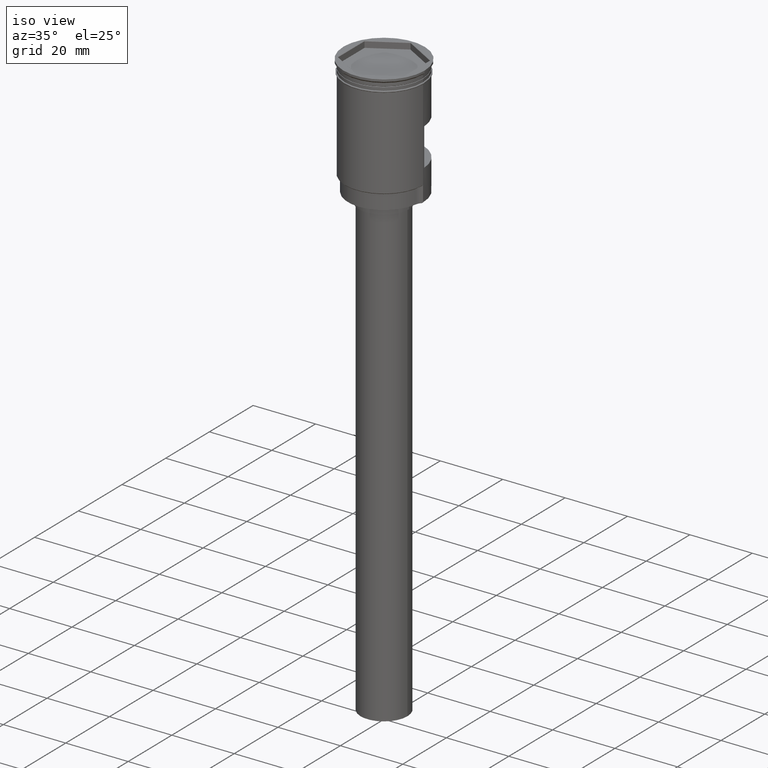
[diagram: clean part render]
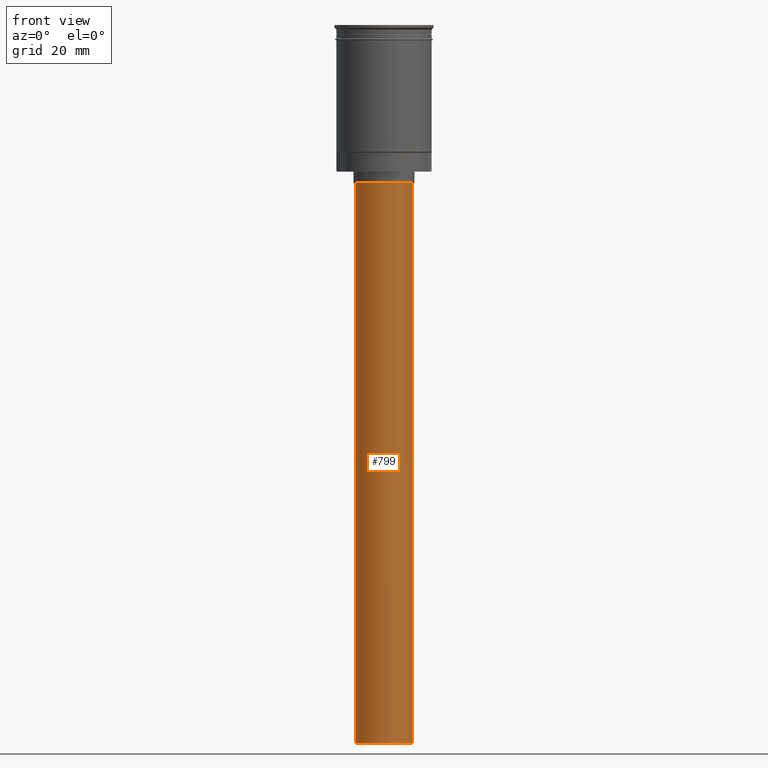
[diagram: tour spotlight — one face highlighted and labeled with its STEP entity id]
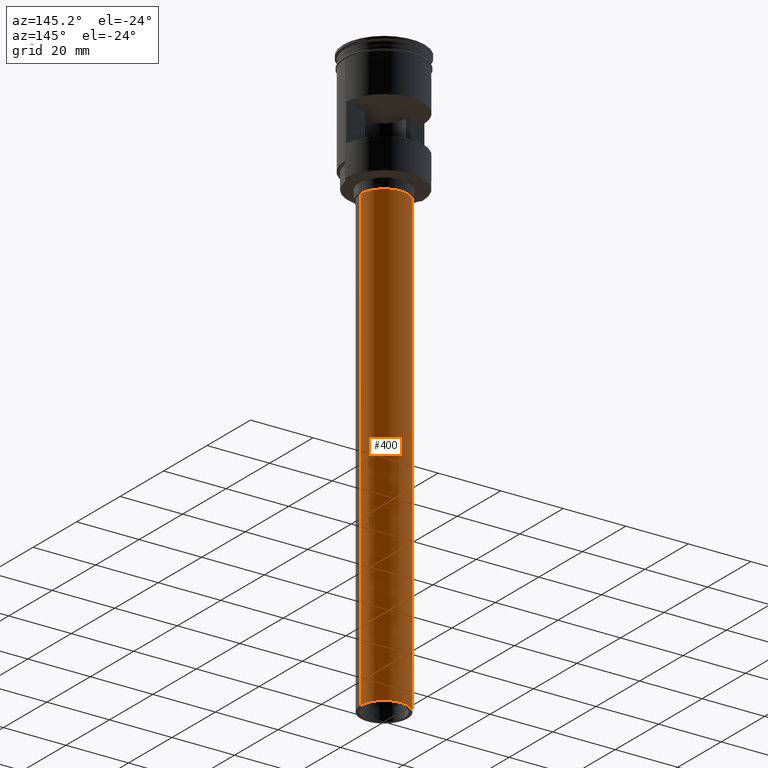
[diagram: tour spotlight — one face highlighted and labeled with its STEP entity id]
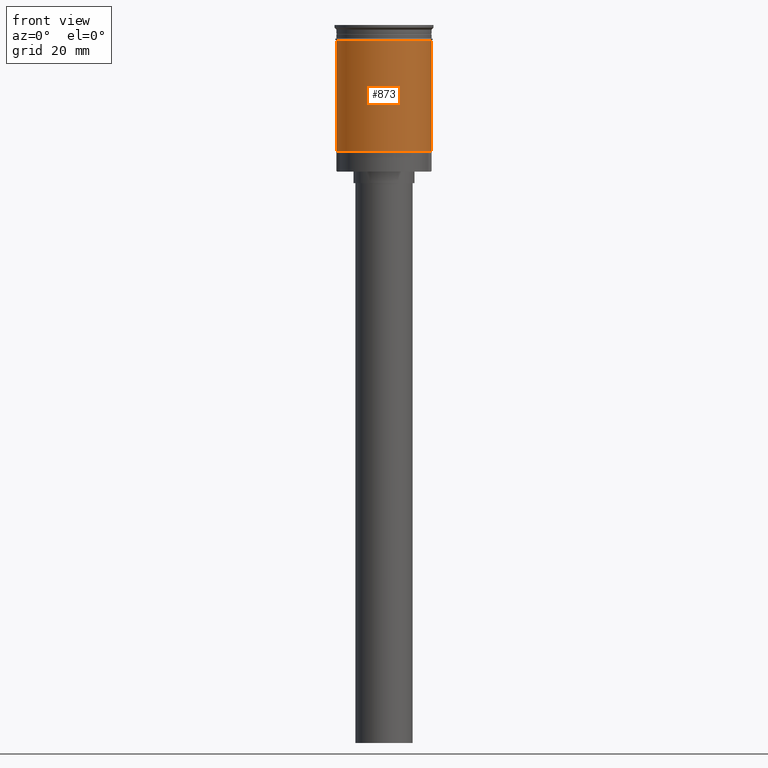
[diagram: tour spotlight — one face highlighted and labeled with its STEP entity id]
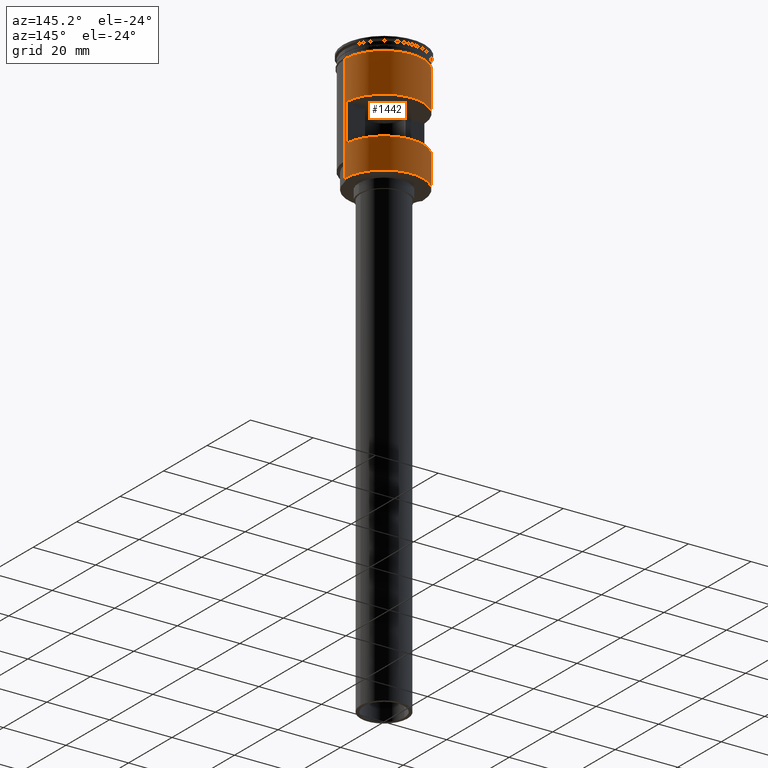
[diagram: tour spotlight — one face highlighted and labeled with its STEP entity id]
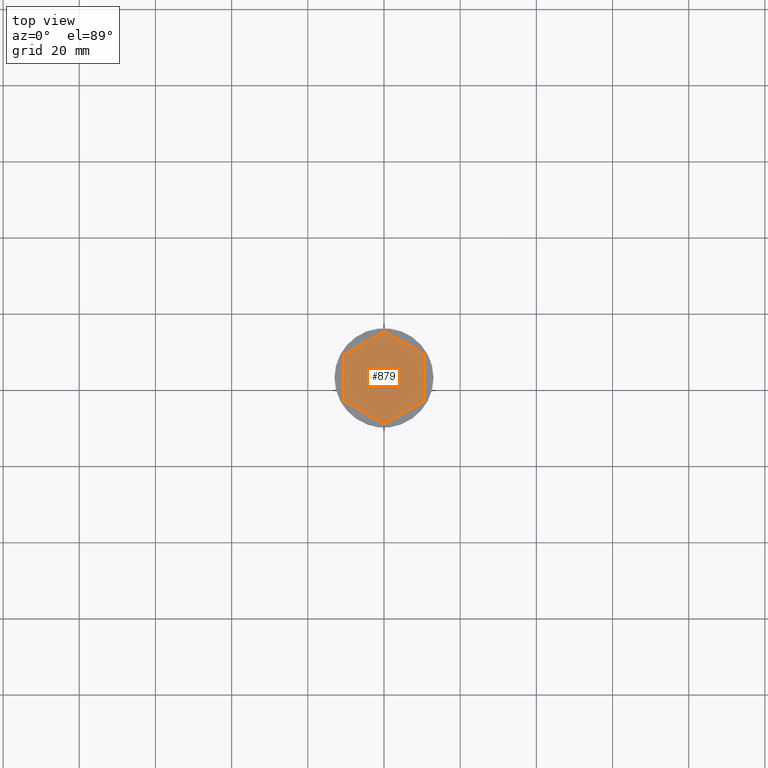
[diagram: tour spotlight — one face highlighted and labeled with its STEP entity id]
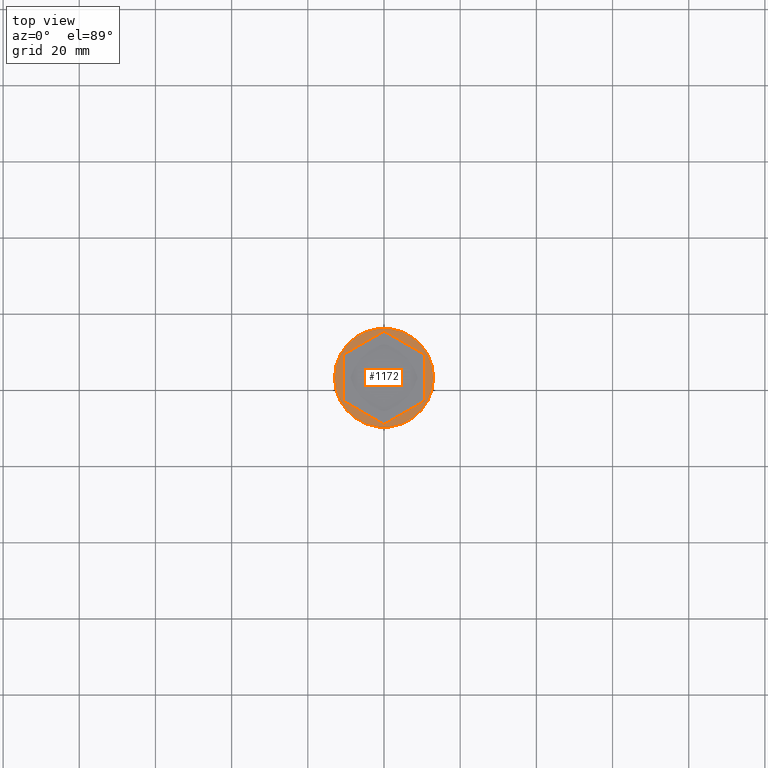
[diagram: tour spotlight — one face highlighted and labeled with its STEP entity id]
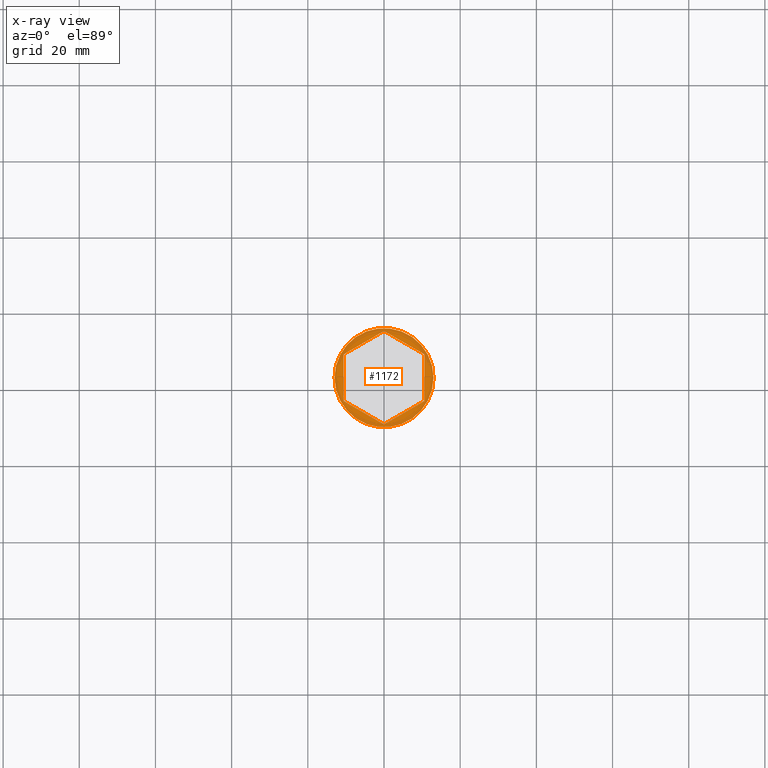
[diagram: x-ray of the same camera — body ghosted, this tour face saturated]
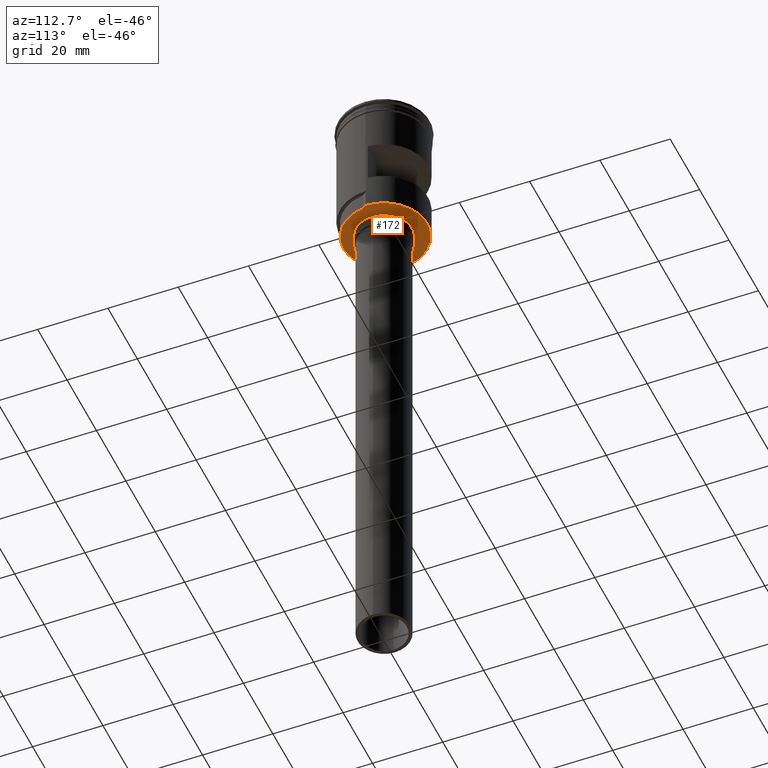
[diagram: tour spotlight — one face highlighted and labeled with its STEP entity id]
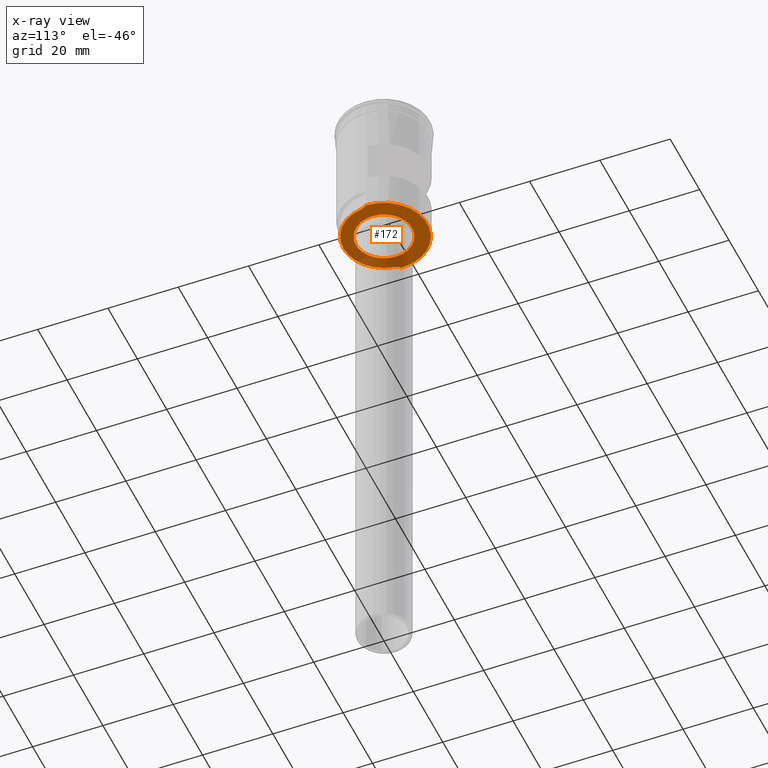
[diagram: x-ray of the same camera — body ghosted, this tour face saturated]
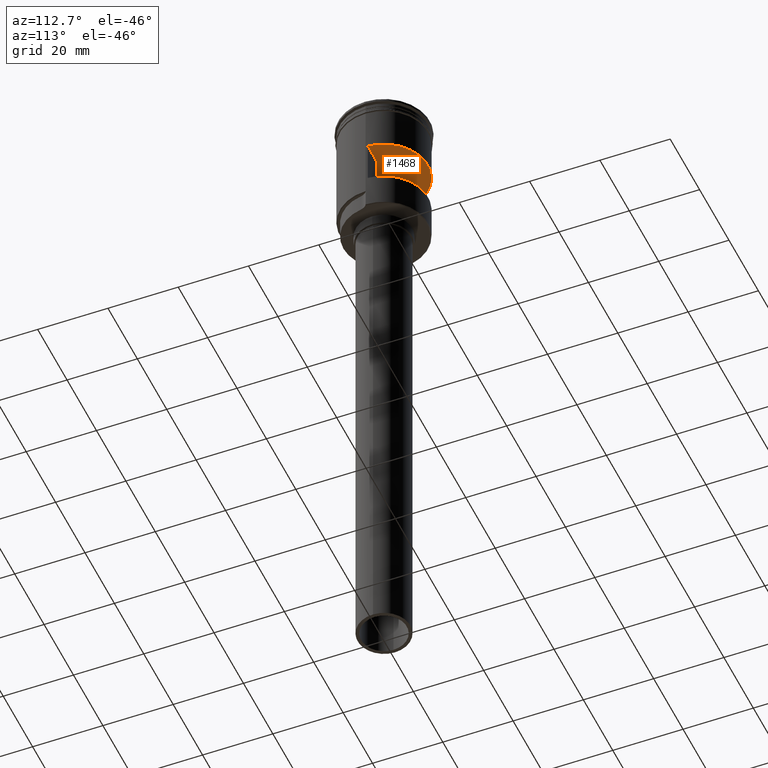
[diagram: tour spotlight — one face highlighted and labeled with its STEP entity id]
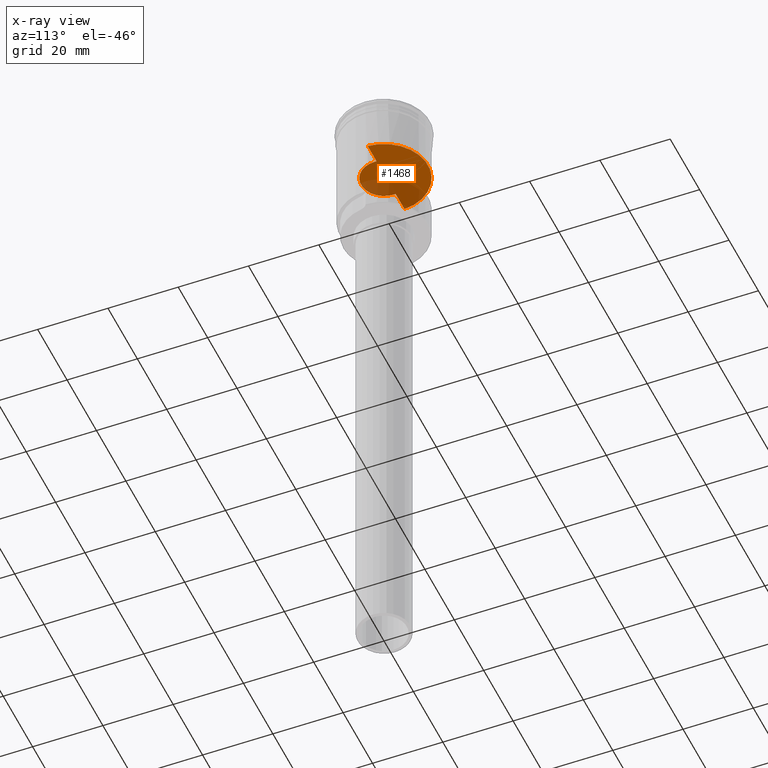
[diagram: x-ray of the same camera — body ghosted, this tour face saturated]
A machine part: a face-by-face anatomy tour. The part has 55 B-rep faces; the first image is the clean iso view, then the 8 largest visible faces are spotlighted one at a time (largest first), each with its STEP entity span.

Face 1 — front view, entity #799. In plain terms, the highlighted cylindrical surface (edge-blend (fillet) strip) has radius 7.5 mm, axis along (-0, -0, 1).
Definition (entity closure, byte-faithful):
#57 = LINE ( 'NONE', #820, #714 ) ;
#83 = DIRECTION ( 'NONE',  ( -1.000000000000000000, 0.000000000000000000, 0.000000000000000000 ) ) ;
#96 = CIRCLE ( 'NONE', #309, 7.500000000000000000 ) ;
#104 = EDGE_CURVE ( 'NONE', #570, #711, #465, .T. ) ;
#122 = CARTESIAN_POINT ( 'NONE',  ( 0.000000000000000000, 0.000000000000000000, -188.5000000000000000 ) ) ;
#154 = LINE ( 'NONE', #1223, #737 ) ;
#307 = AXIS2_PLACEMENT_3D ( 'NONE', #954, #362, #843 ) ;
#309 = AXIS2_PLACEMENT_3D ( 'NONE', #122, #1467, #83 ) ;
#362 = DIRECTION ( 'NONE',  ( -0.000000000000000000, -0.000000000000000000, 1.000000000000000000 ) ) ;
#455 = DIRECTION ( 'NONE',  ( -0.000000000000000000, -0.000000000000000000, 1.000000000000000000 ) ) ;
#456 = VERTEX_POINT ( 'NONE', #1142 ) ;
#465 = CIRCLE ( 'NONE', #1529, 7.500000000000000000 ) ;
#488 = CYLINDRICAL_SURFACE ( 'NONE', #307, 7.500000000000000000 ) ;
#495 = CARTESIAN_POINT ( 'NONE',  ( -7.500000000000000000, 9.184850993605147944E-16, -41.50000000000000000 ) ) ;
#547 = ORIENTED_EDGE ( 'NONE', *, *, #1241, .F. ) ;
#556 = EDGE_LOOP ( 'NONE', ( #976, #547, #768, #1019 ) ) ;
#570 = VERTEX_POINT ( 'NONE', #1550 ) ;
#579 = CARTESIAN_POINT ( 'NONE',  ( 0.000000000000000000, 0.000000000000000000, -41.50000000000000000 ) ) ;
#584 = EDGE_CURVE ( 'NONE', #1591, #711, #57, .T. ) ;
#613 = CARTESIAN_POINT ( 'NONE',  ( -7.500000000000000000, 9.184850993605147944E-16, -188.5000000000000000 ) ) ;
#711 = VERTEX_POINT ( 'NONE', #495 ) ;
#714 = VECTOR ( 'NONE', #455, 1000.000000000000000 ) ;
#737 = VECTOR ( 'NONE', #766, 1000.000000000000000 ) ;
#766 = DIRECTION ( 'NONE',  ( -0.000000000000000000, -0.000000000000000000, 1.000000000000000000 ) ) ;
#768 = ORIENTED_EDGE ( 'NONE', *, *, #1293, .T. ) ;
#799 = ADVANCED_FACE ( 'NONE', ( #1562 ), #488, .T. ) ;
#820 = CARTESIAN_POINT ( 'NONE',  ( -7.500000000000000000, 9.184850993605147944E-16, -188.5000000000000000 ) ) ;
#843 = DIRECTION ( 'NONE',  ( 1.000000000000000000, 0.000000000000000000, 0.000000000000000000 ) ) ;
#908 = DIRECTION ( 'NONE',  ( -1.000000000000000000, 0.000000000000000000, 0.000000000000000000 ) ) ;
#954 = CARTESIAN_POINT ( 'NONE',  ( 0.000000000000000000, 0.000000000000000000, -188.5000000000000000 ) ) ;
#976 = ORIENTED_EDGE ( 'NONE', *, *, #584, .F. ) ;
#1019 = ORIENTED_EDGE ( 'NONE', *, *, #104, .T. ) ;
#1034 = DIRECTION ( 'NONE',  ( 0.000000000000000000, 0.000000000000000000, -1.000000000000000000 ) ) ;
#1142 = CARTESIAN_POINT ( 'NONE',  ( 7.500000000000000000, 0.000000000000000000, -188.5000000000000000 ) ) ;
#1223 = CARTESIAN_POINT ( 'NONE',  ( 7.500000000000000000, 0.000000000000000000, -188.5000000000000000 ) ) ;
#1241 = EDGE_CURVE ( 'NONE', #456, #1591, #96, .T. ) ;
#1293 = EDGE_CURVE ( 'NONE', #456, #570, #154, .T. ) ;
#1467 = DIRECTION ( 'NONE',  ( 0.000000000000000000, 0.000000000000000000, -1.000000000000000000 ) ) ;
#1529 = AXIS2_PLACEMENT_3D ( 'NONE', #579, #1034, #908 ) ;
#1550 = CARTESIAN_POINT ( 'NONE',  ( 7.500000000000000000, 0.000000000000000000, -41.50000000000000000 ) ) ;
#1562 = FACE_OUTER_BOUND ( 'NONE', #556, .T. ) ;
#1591 = VERTEX_POINT ( 'NONE', #613 ) ;

Face 2 — auxiliary view, entity #400. In plain terms, the highlighted cylindrical surface (edge-blend (fillet) strip) has radius 7.5 mm, axis along (-0, -0, 1).
Definition (entity closure, byte-faithful):
#57 = LINE ( 'NONE', #820, #714 ) ;
#63 = AXIS2_PLACEMENT_3D ( 'NONE', #703, #830, #367 ) ;
#154 = LINE ( 'NONE', #1223, #737 ) ;
#181 = ORIENTED_EDGE ( 'NONE', *, *, #584, .T. ) ;
#214 = EDGE_CURVE ( 'NONE', #1591, #456, #1452, .T. ) ;
#336 = DIRECTION ( 'NONE',  ( -1.000000000000000000, 0.000000000000000000, 0.000000000000000000 ) ) ;
#367 = DIRECTION ( 'NONE',  ( -1.000000000000000000, 0.000000000000000000, 0.000000000000000000 ) ) ;
#400 = ADVANCED_FACE ( 'NONE', ( #1500 ), #413, .T. ) ;
#413 = CYLINDRICAL_SURFACE ( 'NONE', #660, 7.500000000000000000 ) ;
#440 = ORIENTED_EDGE ( 'NONE', *, *, #214, .F. ) ;
#455 = DIRECTION ( 'NONE',  ( -0.000000000000000000, -0.000000000000000000, 1.000000000000000000 ) ) ;
#456 = VERTEX_POINT ( 'NONE', #1142 ) ;
#495 = CARTESIAN_POINT ( 'NONE',  ( -7.500000000000000000, 9.184850993605147944E-16, -41.50000000000000000 ) ) ;
#565 = EDGE_LOOP ( 'NONE', ( #440, #181, #1401, #1084 ) ) ;
#570 = VERTEX_POINT ( 'NONE', #1550 ) ;
#584 = EDGE_CURVE ( 'NONE', #1591, #711, #57, .T. ) ;
#592 = CIRCLE ( 'NONE', #716, 7.500000000000000000 ) ;
#613 = CARTESIAN_POINT ( 'NONE',  ( -7.500000000000000000, 9.184850993605147944E-16, -188.5000000000000000 ) ) ;
#660 = AXIS2_PLACEMENT_3D ( 'NONE', #770, #877, #759 ) ;
#703 = CARTESIAN_POINT ( 'NONE',  ( 0.000000000000000000, 0.000000000000000000, -188.5000000000000000 ) ) ;
#711 = VERTEX_POINT ( 'NONE', #495 ) ;
#714 = VECTOR ( 'NONE', #455, 1000.000000000000000 ) ;
#716 = AXIS2_PLACEMENT_3D ( 'NONE', #1299, #1291, #336 ) ;
#737 = VECTOR ( 'NONE', #766, 1000.000000000000000 ) ;
#759 = DIRECTION ( 'NONE',  ( 1.000000000000000000, 0.000000000000000000, 0.000000000000000000 ) ) ;
#766 = DIRECTION ( 'NONE',  ( -0.000000000000000000, -0.000000000000000000, 1.000000000000000000 ) ) ;
#770 = CARTESIAN_POINT ( 'NONE',  ( 0.000000000000000000, 0.000000000000000000, -188.5000000000000000 ) ) ;
#820 = CARTESIAN_POINT ( 'NONE',  ( -7.500000000000000000, 9.184850993605147944E-16, -188.5000000000000000 ) ) ;
#830 = DIRECTION ( 'NONE',  ( 0.000000000000000000, 0.000000000000000000, -1.000000000000000000 ) ) ;
#877 = DIRECTION ( 'NONE',  ( -0.000000000000000000, -0.000000000000000000, 1.000000000000000000 ) ) ;
#1011 = EDGE_CURVE ( 'NONE', #711, #570, #592, .T. ) ;
#1084 = ORIENTED_EDGE ( 'NONE', *, *, #1293, .F. ) ;
#1142 = CARTESIAN_POINT ( 'NONE',  ( 7.500000000000000000, 0.000000000000000000, -188.5000000000000000 ) ) ;
#1223 = CARTESIAN_POINT ( 'NONE',  ( 7.500000000000000000, 0.000000000000000000, -188.5000000000000000 ) ) ;
#1291 = DIRECTION ( 'NONE',  ( 0.000000000000000000, 0.000000000000000000, -1.000000000000000000 ) ) ;
#1293 = EDGE_CURVE ( 'NONE', #456, #570, #154, .T. ) ;
#1299 = CARTESIAN_POINT ( 'NONE',  ( 0.000000000000000000, 0.000000000000000000, -41.50000000000000000 ) ) ;
#1401 = ORIENTED_EDGE ( 'NONE', *, *, #1011, .T. ) ;
#1452 = CIRCLE ( 'NONE', #63, 7.500000000000000000 ) ;
#1500 = FACE_OUTER_BOUND ( 'NONE', #565, .T. ) ;
#1550 = CARTESIAN_POINT ( 'NONE',  ( 7.500000000000000000, 0.000000000000000000, -41.50000000000000000 ) ) ;
#1591 = VERTEX_POINT ( 'NONE', #613 ) ;

Face 3 — front view, entity #873. In plain terms, the highlighted cylindrical surface (partial cylindrical patch) has radius 12.5 mm, axis along (-0, -0, 1).
Definition (entity closure, byte-faithful):
#39 = VERTEX_POINT ( 'NONE', #60 ) ;
#50 = EDGE_CURVE ( 'NONE', #39, #69, #955, .T. ) ;
#60 = CARTESIAN_POINT ( 'NONE',  ( -12.49999999999999289, 0.000000000000000000, -33.29999999999998295 ) ) ;
#69 = VERTEX_POINT ( 'NONE', #315 ) ;
#169 = CYLINDRICAL_SURFACE ( 'NONE', #1118, 12.49999999999999645 ) ;
#281 = EDGE_CURVE ( 'NONE', #69, #708, #1015, .T. ) ;
#290 = DIRECTION ( 'NONE',  ( 1.000000000000000000, 0.000000000000000000, 0.000000000000000000 ) ) ;
#315 = CARTESIAN_POINT ( 'NONE',  ( 12.49999999999999645, 1.530808498934191127E-15, -33.29999999999998295 ) ) ;
#396 = DIRECTION ( 'NONE',  ( -0.000000000000000000, -0.000000000000000000, 1.000000000000000000 ) ) ;
#518 = CARTESIAN_POINT ( 'NONE',  ( 12.49999999999999645, 0.000000000000000000, 0.000000000000000000 ) ) ;
#552 = VERTEX_POINT ( 'NONE', #1065 ) ;
#571 = VECTOR ( 'NONE', #678, 1000.000000000000000 ) ;
#601 = ORIENTED_EDGE ( 'NONE', *, *, #1503, .F. ) ;
#678 = DIRECTION ( 'NONE',  ( -0.000000000000000000, -0.000000000000000000, 1.000000000000000000 ) ) ;
#686 = EDGE_LOOP ( 'NONE', ( #601, #782, #1022, #878 ) ) ;
#708 = VERTEX_POINT ( 'NONE', #852 ) ;
#734 = DIRECTION ( 'NONE',  ( 1.000000000000000000, 0.000000000000000000, 0.000000000000000000 ) ) ;
#782 = ORIENTED_EDGE ( 'NONE', *, *, #50, .T. ) ;
#805 = CARTESIAN_POINT ( 'NONE',  ( 0.000000000000000000, 0.000000000000000000, -33.29999999999998295 ) ) ;
#852 = CARTESIAN_POINT ( 'NONE',  ( 12.49999999999999822, 0.000000000000000000, -3.999999999999996447 ) ) ;
#863 = FACE_OUTER_BOUND ( 'NONE', #686, .T. ) ;
#873 = ADVANCED_FACE ( 'NONE', ( #863 ), #169, .T. ) ;
#874 = DIRECTION ( 'NONE',  ( -0.000000000000000000, -0.000000000000000000, 1.000000000000000000 ) ) ;
#878 = ORIENTED_EDGE ( 'NONE', *, *, #1300, .F. ) ;
#921 = DIRECTION ( 'NONE',  ( -0.000000000000000000, -0.000000000000000000, 1.000000000000000000 ) ) ;
#955 = CIRCLE ( 'NONE', #1477, 12.49999999999999645 ) ;
#1015 = LINE ( 'NONE', #518, #1584 ) ;
#1022 = ORIENTED_EDGE ( 'NONE', *, *, #281, .T. ) ;
#1038 = DIRECTION ( 'NONE',  ( -1.000000000000000000, 0.000000000000000000, 0.000000000000000000 ) ) ;
#1065 = CARTESIAN_POINT ( 'NONE',  ( -12.50000000000000000, 1.530808498934191521E-15, -3.999999999999996447 ) ) ;
#1118 = AXIS2_PLACEMENT_3D ( 'NONE', #1254, #1353, #290 ) ;
#1134 = CARTESIAN_POINT ( 'NONE',  ( 0.000000000000000000, 0.000000000000000000, -3.999999999999996447 ) ) ;
#1254 = CARTESIAN_POINT ( 'NONE',  ( 0.000000000000000000, 0.000000000000000000, 0.000000000000000000 ) ) ;
#1281 = LINE ( 'NONE', #1409, #571 ) ;
#1300 = EDGE_CURVE ( 'NONE', #552, #708, #1377, .T. ) ;
#1353 = DIRECTION ( 'NONE',  ( -0.000000000000000000, -0.000000000000000000, 1.000000000000000000 ) ) ;
#1377 = CIRCLE ( 'NONE', #1589, 12.49999999999999822 ) ;
#1409 = CARTESIAN_POINT ( 'NONE',  ( -12.49999999999999645, 1.530808498934191127E-15, 0.000000000000000000 ) ) ;
#1477 = AXIS2_PLACEMENT_3D ( 'NONE', #805, #921, #1038 ) ;
#1503 = EDGE_CURVE ( 'NONE', #39, #552, #1281, .T. ) ;
#1584 = VECTOR ( 'NONE', #396, 1000.000000000000000 ) ;
#1589 = AXIS2_PLACEMENT_3D ( 'NONE', #1134, #874, #734 ) ;

Face 4 — auxiliary view, entity #1442. In plain terms, the highlighted cylindrical surface (partial cylindrical patch) has radius 12.5 mm, axis along (-0, -0, 1).
Definition (entity closure, byte-faithful):
#13 = LINE ( 'NONE', #1001, #810 ) ;
#39 = VERTEX_POINT ( 'NONE', #60 ) ;
#60 = CARTESIAN_POINT ( 'NONE',  ( -12.49999999999999289, 0.000000000000000000, -33.29999999999998295 ) ) ;
#69 = VERTEX_POINT ( 'NONE', #315 ) ;
#94 = VECTOR ( 'NONE', #835, 1000.000000000000000 ) ;
#102 = DIRECTION ( 'NONE',  ( -0.000000000000000000, -0.000000000000000000, 1.000000000000000000 ) ) ;
#134 = CARTESIAN_POINT ( 'NONE',  ( -12.48559169603106689, 0.6000000000000003109, 0.000000000000000000 ) ) ;
#168 = ORIENTED_EDGE ( 'NONE', *, *, #1503, .T. ) ;
#173 = VERTEX_POINT ( 'NONE', #228 ) ;
#218 = DIRECTION ( 'NONE',  ( -1.000000000000000000, 0.000000000000000000, 0.000000000000000000 ) ) ;
#225 = EDGE_CURVE ( 'NONE', #173, #397, #492, .T. ) ;
#228 = CARTESIAN_POINT ( 'NONE',  ( 12.48559169603106689, 0.6000000000000003109, -28.49999999999999645 ) ) ;
#236 = LINE ( 'NONE', #698, #1249 ) ;
#240 = ORIENTED_EDGE ( 'NONE', *, *, #225, .F. ) ;
#254 = ORIENTED_EDGE ( 'NONE', *, *, #326, .F. ) ;
#281 = EDGE_CURVE ( 'NONE', #69, #708, #1015, .T. ) ;
#288 = CARTESIAN_POINT ( 'NONE',  ( 0.000000000000000000, 0.000000000000000000, 0.000000000000000000 ) ) ;
#296 = FACE_OUTER_BOUND ( 'NONE', #426, .T. ) ;
#315 = CARTESIAN_POINT ( 'NONE',  ( 12.49999999999999645, 1.530808498934191127E-15, -33.29999999999998295 ) ) ;
#326 = EDGE_CURVE ( 'NONE', #1602, #173, #13, .T. ) ;
#330 = DIRECTION ( 'NONE',  ( 0.000000000000000000, 0.000000000000000000, -1.000000000000000000 ) ) ;
#343 = EDGE_LOOP ( 'NONE', ( #254, #494, #642, #240 ) ) ;
#376 = DIRECTION ( 'NONE',  ( 0.000000000000000000, 0.000000000000000000, 1.000000000000000000 ) ) ;
#396 = DIRECTION ( 'NONE',  ( -0.000000000000000000, -0.000000000000000000, 1.000000000000000000 ) ) ;
#397 = VERTEX_POINT ( 'NONE', #662 ) ;
#414 = ORIENTED_EDGE ( 'NONE', *, *, #701, .T. ) ;
#420 = VERTEX_POINT ( 'NONE', #1255 ) ;
#426 = EDGE_LOOP ( 'NONE', ( #414, #168, #1064, #1041, #1380, #1125 ) ) ;
#435 = DIRECTION ( 'NONE',  ( -0.000000000000000000, -0.000000000000000000, 1.000000000000000000 ) ) ;
#441 = DIRECTION ( 'NONE',  ( 1.000000000000000000, 0.000000000000000000, 0.000000000000000000 ) ) ;
#492 = CIRCLE ( 'NONE', #733, 12.49999999999999645 ) ;
#494 = ORIENTED_EDGE ( 'NONE', *, *, #639, .F. ) ;
#497 = AXIS2_PLACEMENT_3D ( 'NONE', #909, #564, #919 ) ;
#518 = CARTESIAN_POINT ( 'NONE',  ( 12.49999999999999645, 0.000000000000000000, 0.000000000000000000 ) ) ;
#552 = VERTEX_POINT ( 'NONE', #1065 ) ;
#564 = DIRECTION ( 'NONE',  ( -0.000000000000000000, 0.000000000000000000, -1.000000000000000000 ) ) ;
#571 = VECTOR ( 'NONE', #678, 1000.000000000000000 ) ;
#577 = DIRECTION ( 'NONE',  ( -0.000000000000000000, -0.000000000000000000, 1.000000000000000000 ) ) ;
#593 = EDGE_CURVE ( 'NONE', #991, #604, #887, .T. ) ;
#604 = VERTEX_POINT ( 'NONE', #1405 ) ;
#610 = LINE ( 'NONE', #134, #94 ) ;
#620 = VECTOR ( 'NONE', #1341, 1000.000000000000000 ) ;
#639 = EDGE_CURVE ( 'NONE', #420, #1602, #641, .T. ) ;
#641 = CIRCLE ( 'NONE', #497, 12.49999999999999645 ) ;
#642 = ORIENTED_EDGE ( 'NONE', *, *, #796, .F. ) ;
#662 = CARTESIAN_POINT ( 'NONE',  ( -12.48559169603106689, 0.6000000000000003109, -28.49999999999999645 ) ) ;
#678 = DIRECTION ( 'NONE',  ( -0.000000000000000000, -0.000000000000000000, 1.000000000000000000 ) ) ;
#694 = CARTESIAN_POINT ( 'NONE',  ( 0.000000000000000000, 0.000000000000000000, -3.999999999999996447 ) ) ;
#698 = CARTESIAN_POINT ( 'NONE',  ( 12.49999999999999289, 1.530808498934190732E-15, -38.50000000000000000 ) ) ;
#701 = EDGE_CURVE ( 'NONE', #604, #39, #1438, .T. ) ;
#708 = VERTEX_POINT ( 'NONE', #852 ) ;
#723 = CARTESIAN_POINT ( 'NONE',  ( 0.000000000000000000, 0.000000000000000000, -28.49999999999999645 ) ) ;
#730 = CARTESIAN_POINT ( 'NONE',  ( -12.49999999999999289, 0.000000000000000000, -38.50000000000000000 ) ) ;
#733 = AXIS2_PLACEMENT_3D ( 'NONE', #723, #376, #1076 ) ;
#796 = EDGE_CURVE ( 'NONE', #397, #420, #610, .T. ) ;
#810 = VECTOR ( 'NONE', #330, 1000.000000000000000 ) ;
#835 = DIRECTION ( 'NONE',  ( -0.000000000000000000, -0.000000000000000000, 1.000000000000000000 ) ) ;
#852 = CARTESIAN_POINT ( 'NONE',  ( 12.49999999999999822, 0.000000000000000000, -3.999999999999996447 ) ) ;
#887 = CIRCLE ( 'NONE', #1179, 12.49999999999999645 ) ;
#888 = AXIS2_PLACEMENT_3D ( 'NONE', #288, #577, #441 ) ;
#905 = DIRECTION ( 'NONE',  ( 1.000000000000000000, 0.000000000000000000, 0.000000000000000000 ) ) ;
#909 = CARTESIAN_POINT ( 'NONE',  ( 0.000000000000000000, 0.000000000000000000, -16.50000000000000000 ) ) ;
#919 = DIRECTION ( 'NONE',  ( 1.000000000000000000, 0.000000000000000000, 0.000000000000000000 ) ) ;
#922 = CYLINDRICAL_SURFACE ( 'NONE', #888, 12.49999999999999645 ) ;
#926 = DIRECTION ( 'NONE',  ( 0.000000000000000000, 0.000000000000000000, 1.000000000000000000 ) ) ;
#959 = CARTESIAN_POINT ( 'NONE',  ( 12.48559169603106689, 0.6000000000000003109, -16.50000000000000000 ) ) ;
#991 = VERTEX_POINT ( 'NONE', #1548 ) ;
#997 = EDGE_CURVE ( 'NONE', #708, #552, #1537, .T. ) ;
#1001 = CARTESIAN_POINT ( 'NONE',  ( 12.48559169603106689, 0.6000000000000003109, 0.000000000000000000 ) ) ;
#1015 = LINE ( 'NONE', #518, #1584 ) ;
#1041 = ORIENTED_EDGE ( 'NONE', *, *, #281, .F. ) ;
#1064 = ORIENTED_EDGE ( 'NONE', *, *, #997, .F. ) ;
#1065 = CARTESIAN_POINT ( 'NONE',  ( -12.50000000000000000, 1.530808498934191521E-15, -3.999999999999996447 ) ) ;
#1076 = DIRECTION ( 'NONE',  ( -1.000000000000000000, 0.000000000000000000, 0.000000000000000000 ) ) ;
#1079 = AXIS2_PLACEMENT_3D ( 'NONE', #694, #435, #905 ) ;
#1125 = ORIENTED_EDGE ( 'NONE', *, *, #593, .T. ) ;
#1179 = AXIS2_PLACEMENT_3D ( 'NONE', #1301, #926, #218 ) ;
#1249 = VECTOR ( 'NONE', #102, 1000.000000000000000 ) ;
#1255 = CARTESIAN_POINT ( 'NONE',  ( -12.48559169603106689, 0.6000000000000003109, -16.50000000000000000 ) ) ;
#1281 = LINE ( 'NONE', #1409, #571 ) ;
#1301 = CARTESIAN_POINT ( 'NONE',  ( 0.000000000000000000, 0.000000000000000000, -38.29999999999996874 ) ) ;
#1341 = DIRECTION ( 'NONE',  ( -0.000000000000000000, -0.000000000000000000, 1.000000000000000000 ) ) ;
#1380 = ORIENTED_EDGE ( 'NONE', *, *, #1605, .F. ) ;
#1405 = CARTESIAN_POINT ( 'NONE',  ( -12.49999999999999289, 0.000000000000000000, -38.29999999999996874 ) ) ;
#1409 = CARTESIAN_POINT ( 'NONE',  ( -12.49999999999999645, 1.530808498934191127E-15, 0.000000000000000000 ) ) ;
#1438 = LINE ( 'NONE', #730, #620 ) ;
#1442 = ADVANCED_FACE ( 'NONE', ( #1542, #296 ), #922, .T. ) ;
#1503 = EDGE_CURVE ( 'NONE', #39, #552, #1281, .T. ) ;
#1537 = CIRCLE ( 'NONE', #1079, 12.49999999999999822 ) ;
#1542 = FACE_BOUND ( 'NONE', #343, .T. ) ;
#1548 = CARTESIAN_POINT ( 'NONE',  ( 12.49999999999999289, 1.530808498934190732E-15, -38.29999999999996874 ) ) ;
#1584 = VECTOR ( 'NONE', #396, 1000.000000000000000 ) ;
#1602 = VERTEX_POINT ( 'NONE', #959 ) ;
#1605 = EDGE_CURVE ( 'NONE', #991, #69, #236, .T. ) ;

Face 5 — top view, entity #879. In plain terms, the highlighted planar face has unit normal (-0, 0, 1).
Definition (entity closure, byte-faithful):
#19 = ORIENTED_EDGE ( 'NONE', *, *, #1587, .T. ) ;
#77 = CARTESIAN_POINT ( 'NONE',  ( 5.250000000000000000, -9.093266739736604265, -2.000000000000000000 ) ) ;
#115 = LINE ( 'NONE', #1103, #332 ) ;
#120 = DIRECTION ( 'NONE',  ( 0.000000000000000000, 1.000000000000000000, -0.000000000000000000 ) ) ;
#148 = VECTOR ( 'NONE', #1070, 1000.000000000000114 ) ;
#176 = EDGE_CURVE ( 'NONE', #287, #1277, #1327, .T. ) ;
#194 = ORIENTED_EDGE ( 'NONE', *, *, #1489, .T. ) ;
#224 = AXIS2_PLACEMENT_3D ( 'NONE', #891, #1137, #775 ) ;
#287 = VERTEX_POINT ( 'NONE', #1287 ) ;
#297 = EDGE_LOOP ( 'NONE', ( #461, #709, #1582, #194, #623, #19 ) ) ;
#332 = VECTOR ( 'NONE', #628, 1000.000000000000000 ) ;
#372 = EDGE_CURVE ( 'NONE', #537, #1449, #115, .T. ) ;
#412 = FACE_OUTER_BOUND ( 'NONE', #297, .T. ) ;
#448 = LINE ( 'NONE', #77, #937 ) ;
#451 = CARTESIAN_POINT ( 'NONE',  ( -5.249999999999998224, -9.093266739736606041, -2.000000000000000000 ) ) ;
#452 = VERTEX_POINT ( 'NONE', #1355 ) ;
#461 = ORIENTED_EDGE ( 'NONE', *, *, #176, .T. ) ;
#467 = CARTESIAN_POINT ( 'NONE',  ( 10.49999999999999822, 0.000000000000000000, -2.000000000000000000 ) ) ;
#498 = VECTOR ( 'NONE', #120, 1000.000000000000000 ) ;
#529 = EDGE_CURVE ( 'NONE', #452, #821, #448, .T. ) ;
#533 = PLANE ( 'NONE',  #224 ) ;
#537 = VERTEX_POINT ( 'NONE', #1186 ) ;
#553 = CARTESIAN_POINT ( 'NONE',  ( -10.49999999999999822, -6.062177826491072175, -2.000000000000000000 ) ) ;
#591 = CARTESIAN_POINT ( 'NONE',  ( 0.000000000000000000, 12.12435565298213724, -2.000000000000000000 ) ) ;
#600 = EDGE_CURVE ( 'NONE', #1277, #537, #696, .T. ) ;
#606 = CARTESIAN_POINT ( 'NONE',  ( 5.249999999999996447, 9.093266739736606041, -2.000000000000000000 ) ) ;
#623 = ORIENTED_EDGE ( 'NONE', *, *, #529, .T. ) ;
#628 = DIRECTION ( 'NONE',  ( 0.000000000000000000, -1.000000000000000000, 0.000000000000000000 ) ) ;
#659 = LINE ( 'NONE', #451, #1351 ) ;
#696 = LINE ( 'NONE', #700, #861 ) ;
#700 = CARTESIAN_POINT ( 'NONE',  ( -5.249999999999997335, 9.093266739736602489, -2.000000000000000000 ) ) ;
#709 = ORIENTED_EDGE ( 'NONE', *, *, #600, .T. ) ;
#775 = DIRECTION ( 'NONE',  ( 1.000000000000000000, 0.000000000000000000, 0.000000000000000000 ) ) ;
#821 = VERTEX_POINT ( 'NONE', #870 ) ;
#861 = VECTOR ( 'NONE', #1191, 999.9999999999998863 ) ;
#870 = CARTESIAN_POINT ( 'NONE',  ( 10.49999999999999822, -6.062177826491069510, -2.000000000000000000 ) ) ;
#879 = ADVANCED_FACE ( 'NONE', ( #412 ), #533, .T. ) ;
#891 = CARTESIAN_POINT ( 'NONE',  ( 0.000000000000000000, 0.000000000000000000, -2.000000000000000000 ) ) ;
#898 = DIRECTION ( 'NONE',  ( 0.8660254037844385966, 0.5000000000000001110, 0.000000000000000000 ) ) ;
#937 = VECTOR ( 'NONE', #898, 1000.000000000000000 ) ;
#1070 = DIRECTION ( 'NONE',  ( -0.8660254037844387076, 0.4999999999999997224, 0.000000000000000000 ) ) ;
#1103 = CARTESIAN_POINT ( 'NONE',  ( -10.49999999999999822, 0.000000000000000000, -2.000000000000000000 ) ) ;
#1137 = DIRECTION ( 'NONE',  ( -0.000000000000000000, 0.000000000000000000, 1.000000000000000000 ) ) ;
#1186 = CARTESIAN_POINT ( 'NONE',  ( -10.49999999999999822, 6.062177826491066845, -2.000000000000000000 ) ) ;
#1191 = DIRECTION ( 'NONE',  ( -0.8660254037844387076, -0.5000000000000001110, 0.000000000000000000 ) ) ;
#1277 = VERTEX_POINT ( 'NONE', #591 ) ;
#1287 = CARTESIAN_POINT ( 'NONE',  ( 10.49999999999999822, 6.062177826491071286, -2.000000000000000000 ) ) ;
#1327 = LINE ( 'NONE', #606, #148 ) ;
#1351 = VECTOR ( 'NONE', #1416, 1000.000000000000114 ) ;
#1355 = CARTESIAN_POINT ( 'NONE',  ( 0.000000000000000000, -12.12435565298214080, -2.000000000000000000 ) ) ;
#1416 = DIRECTION ( 'NONE',  ( 0.8660254037844387076, -0.4999999999999998890, 0.000000000000000000 ) ) ;
#1449 = VERTEX_POINT ( 'NONE', #553 ) ;
#1489 = EDGE_CURVE ( 'NONE', #1449, #452, #659, .T. ) ;
#1575 = LINE ( 'NONE', #467, #498 ) ;
#1582 = ORIENTED_EDGE ( 'NONE', *, *, #372, .T. ) ;
#1587 = EDGE_CURVE ( 'NONE', #821, #287, #1575, .T. ) ;

Face 6 — top view, entity #1172. An x-ray twin of the same camera follows (body ghosted, this face saturated) — the face is partly hidden behind the body. In plain terms, the highlighted planar face has unit normal (0, -0, 1).
Definition (entity closure, byte-faithful):
#23 = VERTEX_POINT ( 'NONE', #1521 ) ;
#42 = DIRECTION ( 'NONE',  ( -0.000000000000000000, -0.000000000000000000, 1.000000000000000000 ) ) ;
#55 = CARTESIAN_POINT ( 'NONE',  ( 0.04999999999999139161, -12.21095819336056998, 0.000000000000000000 ) ) ;
#74 = DIRECTION ( 'NONE',  ( 0.8660254037844385966, 0.5000000000000001110, 0.000000000000000000 ) ) ;
#112 = CARTESIAN_POINT ( 'NONE',  ( -10.59999999999998010, 6.119912853410018450, 0.000000000000000000 ) ) ;
#129 = ORIENTED_EDGE ( 'NONE', *, *, #1020, .T. ) ;
#152 = VECTOR ( 'NONE', #1246, 1000.000000000000000 ) ;
#163 = LINE ( 'NONE', #421, #152 ) ;
#165 = VERTEX_POINT ( 'NONE', #112 ) ;
#196 = ORIENTED_EDGE ( 'NONE', *, *, #837, .T. ) ;
#201 = CARTESIAN_POINT ( 'NONE',  ( -0.04999999999999183570, 12.21095819336056643, 0.000000000000000000 ) ) ;
#207 = VERTEX_POINT ( 'NONE', #622 ) ;
#259 = VECTOR ( 'NONE', #74, 1000.000000000000114 ) ;
#276 = ORIENTED_EDGE ( 'NONE', *, *, #1437, .T. ) ;
#316 = EDGE_CURVE ( 'NONE', #990, #741, #636, .T. ) ;
#317 = DIRECTION ( 'NONE',  ( -0.8660254037844387076, 0.4999999999999998335, 0.000000000000000000 ) ) ;
#324 = VERTEX_POINT ( 'NONE', #1578 ) ;
#339 = DIRECTION ( 'NONE',  ( -0.000000000000000000, -0.000000000000000000, 1.000000000000000000 ) ) ;
#351 = CARTESIAN_POINT ( 'NONE',  ( -13.00000000000000178, 1.592040838891559293E-15, 0.000000000000000000 ) ) ;
#391 = LINE ( 'NONE', #1343, #596 ) ;
#401 = DIRECTION ( 'NONE',  ( 0.8660254037844388186, -0.4999999999999997780, 0.000000000000000000 ) ) ;
#421 = CARTESIAN_POINT ( 'NONE',  ( -10.59999999999998010, 6.062177826491066845, 0.000000000000000000 ) ) ;
#460 = DIRECTION ( 'NONE',  ( 0.000000000000000000, -1.000000000000000000, -0.000000000000000000 ) ) ;
#502 = PLANE ( 'NONE',  #1457 ) ;
#555 = CARTESIAN_POINT ( 'NONE',  ( 10.59999999999998010, -6.062177826491069510, 0.000000000000000000 ) ) ;
#587 = VERTEX_POINT ( 'NONE', #1536 ) ;
#596 = VECTOR ( 'NONE', #401, 1000.000000000000114 ) ;
#616 = DIRECTION ( 'NONE',  ( 0.000000000000000000, -0.000000000000000000, 1.000000000000000000 ) ) ;
#622 = CARTESIAN_POINT ( 'NONE',  ( 2.407398643859234042E-15, 12.23982570682004400, 0.000000000000000000 ) ) ;
#636 = CIRCLE ( 'NONE', #1318, 13.00000000000000178 ) ;
#646 = CIRCLE ( 'NONE', #1459, 13.00000000000000178 ) ;
#721 = CARTESIAN_POINT ( 'NONE',  ( -9.565220071445602241E-16, -12.23982570682004578, 0.000000000000000000 ) ) ;
#722 = ORIENTED_EDGE ( 'NONE', *, *, #1374, .T. ) ;
#725 = EDGE_LOOP ( 'NONE', ( #1321, #276 ) ) ;
#741 = VERTEX_POINT ( 'NONE', #351 ) ;
#744 = CARTESIAN_POINT ( 'NONE',  ( 0.000000000000000000, 0.000000000000000000, 0.000000000000000000 ) ) ;
#745 = ORIENTED_EDGE ( 'NONE', *, *, #1094, .T. ) ;
#763 = VECTOR ( 'NONE', #317, 1000.000000000000000 ) ;
#797 = LINE ( 'NONE', #201, #259 ) ;
#798 = VERTEX_POINT ( 'NONE', #721 ) ;
#806 = LINE ( 'NONE', #1530, #763 ) ;
#808 = ORIENTED_EDGE ( 'NONE', *, *, #1541, .T. ) ;
#817 = CARTESIAN_POINT ( 'NONE',  ( 13.00000000000000178, 0.000000000000000000, 0.000000000000000000 ) ) ;
#826 = FACE_BOUND ( 'NONE', #1367, .T. ) ;
#837 = EDGE_CURVE ( 'NONE', #23, #165, #163, .T. ) ;
#849 = DIRECTION ( 'NONE',  ( 1.000000000000000000, 0.000000000000000000, 0.000000000000000000 ) ) ;
#990 = VERTEX_POINT ( 'NONE', #817 ) ;
#1016 = VECTOR ( 'NONE', #460, 1000.000000000000000 ) ;
#1020 = EDGE_CURVE ( 'NONE', #324, #798, #1278, .T. ) ;
#1048 = VECTOR ( 'NONE', #1532, 999.9999999999998863 ) ;
#1062 = LINE ( 'NONE', #555, #1016 ) ;
#1094 = EDGE_CURVE ( 'NONE', #587, #324, #1062, .T. ) ;
#1117 = ORIENTED_EDGE ( 'NONE', *, *, #1508, .T. ) ;
#1172 = ADVANCED_FACE ( 'NONE', ( #826, #1462 ), #502, .T. ) ;
#1195 = CARTESIAN_POINT ( 'NONE',  ( 0.000000000000000000, 0.000000000000000000, 0.000000000000000000 ) ) ;
#1246 = DIRECTION ( 'NONE',  ( 0.000000000000000000, 1.000000000000000000, 0.000000000000000000 ) ) ;
#1278 = LINE ( 'NONE', #55, #1048 ) ;
#1307 = DIRECTION ( 'NONE',  ( 1.000000000000000000, 0.000000000000000000, 0.000000000000000000 ) ) ;
#1318 = AXIS2_PLACEMENT_3D ( 'NONE', #1427, #339, #1307 ) ;
#1321 = ORIENTED_EDGE ( 'NONE', *, *, #316, .T. ) ;
#1343 = CARTESIAN_POINT ( 'NONE',  ( 10.54999999999999005, 6.148780366869502245, 0.000000000000000000 ) ) ;
#1367 = EDGE_LOOP ( 'NONE', ( #196, #808, #722, #745, #129, #1117 ) ) ;
#1374 = EDGE_CURVE ( 'NONE', #207, #587, #391, .T. ) ;
#1427 = CARTESIAN_POINT ( 'NONE',  ( 0.000000000000000000, 0.000000000000000000, 0.000000000000000000 ) ) ;
#1437 = EDGE_CURVE ( 'NONE', #741, #990, #646, .T. ) ;
#1457 = AXIS2_PLACEMENT_3D ( 'NONE', #1195, #616, #849 ) ;
#1459 = AXIS2_PLACEMENT_3D ( 'NONE', #744, #42, #1514 ) ;
#1462 = FACE_OUTER_BOUND ( 'NONE', #725, .T. ) ;
#1508 = EDGE_CURVE ( 'NONE', #798, #23, #806, .T. ) ;
#1514 = DIRECTION ( 'NONE',  ( 1.000000000000000000, 0.000000000000000000, 0.000000000000000000 ) ) ;
#1521 = CARTESIAN_POINT ( 'NONE',  ( -10.59999999999998010, -6.119912853410028220, 0.000000000000000000 ) ) ;
#1530 = CARTESIAN_POINT ( 'NONE',  ( -10.54999999999999183, -6.148780366869503133, 0.000000000000000000 ) ) ;
#1532 = DIRECTION ( 'NONE',  ( -0.8660254037844385966, -0.5000000000000002220, 0.000000000000000000 ) ) ;
#1536 = CARTESIAN_POINT ( 'NONE',  ( 10.59999999999998010, 6.119912853410025555, 0.000000000000000000 ) ) ;
#1541 = EDGE_CURVE ( 'NONE', #165, #207, #797, .T. ) ;
#1578 = CARTESIAN_POINT ( 'NONE',  ( 10.59999999999998010, -6.119912853410021114, 0.000000000000000000 ) ) ;

Face 7 — auxiliary view, entity #172. An x-ray twin of the same camera follows (body ghosted, this face saturated) — the face is partly hidden behind the body. In plain terms, the highlighted planar face has unit normal (0, 0, -1).
Definition (entity closure, byte-faithful):
#16 = CARTESIAN_POINT ( 'NONE',  ( 11.39766701030927543, -1.869675566002708900, -38.50000000000000000 ) ) ;
#24 = VERTEX_POINT ( 'NONE', #16 ) ;
#44 = DIRECTION ( 'NONE',  ( 0.000000000000000000, 0.000000000000000000, -1.000000000000000000 ) ) ;
#45 = ORIENTED_EDGE ( 'NONE', *, *, #468, .F. ) ;
#48 = DIRECTION ( 'NONE',  ( 0.000000000000000000, 0.000000000000000000, -1.000000000000000000 ) ) ;
#98 = DIRECTION ( 'NONE',  ( -1.000000000000000000, 0.000000000000000000, 0.000000000000000000 ) ) ;
#101 = ORIENTED_EDGE ( 'NONE', *, *, #1008, .F. ) ;
#131 = CIRCLE ( 'NONE', #938, 12.29999999999997762 ) ;
#133 = VERTEX_POINT ( 'NONE', #1404 ) ;
#142 = VERTEX_POINT ( 'NONE', #952 ) ;
#153 = AXIS2_PLACEMENT_3D ( 'NONE', #930, #44, #1283 ) ;
#158 = DIRECTION ( 'NONE',  ( -1.000000000000000000, 0.000000000000000000, 0.000000000000000000 ) ) ;
#172 = ADVANCED_FACE ( 'NONE', ( #1435, #346 ), #1305, .T. ) ;
#192 = DIRECTION ( 'NONE',  ( 0.000000000000000000, 0.000000000000000000, -1.000000000000000000 ) ) ;
#235 = EDGE_CURVE ( 'NONE', #24, #779, #858, .T. ) ;
#250 = AXIS2_PLACEMENT_3D ( 'NONE', #1051, #48, #1567 ) ;
#257 = ORIENTED_EDGE ( 'NONE', *, *, #856, .T. ) ;
#266 = VERTEX_POINT ( 'NONE', #1059 ) ;
#346 = FACE_OUTER_BOUND ( 'NONE', #594, .T. ) ;
#355 = CARTESIAN_POINT ( 'NONE',  ( -11.39766701030927543, -1.869675566002713563, -38.50000000000000000 ) ) ;
#356 = EDGE_CURVE ( 'NONE', #142, #1535, #1009, .T. ) ;
#357 = CARTESIAN_POINT ( 'NONE',  ( 0.000000000000000000, 0.000000000000000000, -38.50000000000000000 ) ) ;
#404 = DIRECTION ( 'NONE',  ( 0.000000000000000000, 0.000000000000000000, -1.000000000000000000 ) ) ;
#411 = AXIS2_PLACEMENT_3D ( 'NONE', #945, #832, #1315 ) ;
#468 = EDGE_CURVE ( 'NONE', #142, #779, #519, .T. ) ;
#474 = CARTESIAN_POINT ( 'NONE',  ( 12.29999999999997762, 0.000000000000000000, -38.50000000000000000 ) ) ;
#503 = EDGE_CURVE ( 'NONE', #266, #133, #1296, .T. ) ;
#507 = DIRECTION ( 'NONE',  ( 0.000000000000000000, 0.000000000000000000, -1.000000000000000000 ) ) ;
#519 = CIRCLE ( 'NONE', #692, 2.999999999999999112 ) ;
#562 = EDGE_LOOP ( 'NONE', ( #651, #1012 ) ) ;
#594 = EDGE_LOOP ( 'NONE', ( #45, #794, #1440, #257, #101, #1370 ) ) ;
#651 = ORIENTED_EDGE ( 'NONE', *, *, #503, .F. ) ;
#656 = CARTESIAN_POINT ( 'NONE',  ( -14.35809999999999498, -2.355305583146269477, -38.50000000000000000 ) ) ;
#692 = AXIS2_PLACEMENT_3D ( 'NONE', #656, #1359, #158 ) ;
#773 = VERTEX_POINT ( 'NONE', #474 ) ;
#779 = VERTEX_POINT ( 'NONE', #355 ) ;
#794 = ORIENTED_EDGE ( 'NONE', *, *, #356, .T. ) ;
#832 = DIRECTION ( 'NONE',  ( 0.000000000000000000, 0.000000000000000000, -1.000000000000000000 ) ) ;
#856 = EDGE_CURVE ( 'NONE', #773, #1330, #1193, .T. ) ;
#858 = CIRCLE ( 'NONE', #1399, 11.54999999999999716 ) ;
#889 = CARTESIAN_POINT ( 'NONE',  ( 0.000000000000000000, 0.000000000000000000, -38.50000000000000000 ) ) ;
#901 = AXIS2_PLACEMENT_3D ( 'NONE', #1141, #1004, #1358 ) ;
#914 = AXIS2_PLACEMENT_3D ( 'NONE', #1601, #507, #975 ) ;
#930 = CARTESIAN_POINT ( 'NONE',  ( 14.35809999999999498, -2.355305583146269477, -38.50000000000000000 ) ) ;
#938 = AXIS2_PLACEMENT_3D ( 'NONE', #889, #192, #1392 ) ;
#945 = CARTESIAN_POINT ( 'NONE',  ( -7.179049999999997489, -1.177652791573134738, -38.50000000000000000 ) ) ;
#952 = CARTESIAN_POINT ( 'NONE',  ( -12.29877269673719198, -0.1737531409537070581, -38.50000000000000000 ) ) ;
#975 = DIRECTION ( 'NONE',  ( -1.000000000000000000, 0.000000000000000000, 0.000000000000000000 ) ) ;
#1004 = DIRECTION ( 'NONE',  ( 0.000000000000000000, 0.000000000000000000, -1.000000000000000000 ) ) ;
#1008 = EDGE_CURVE ( 'NONE', #24, #1330, #1348, .T. ) ;
#1009 = CIRCLE ( 'NONE', #250, 12.29999999999997762 ) ;
#1012 = ORIENTED_EDGE ( 'NONE', *, *, #1407, .F. ) ;
#1051 = CARTESIAN_POINT ( 'NONE',  ( 0.000000000000000000, 0.000000000000000000, -38.50000000000000000 ) ) ;
#1059 = CARTESIAN_POINT ( 'NONE',  ( 8.000000000000000000, 0.000000000000000000, -38.50000000000000000 ) ) ;
#1077 = AXIS2_PLACEMENT_3D ( 'NONE', #1494, #404, #1369 ) ;
#1141 = CARTESIAN_POINT ( 'NONE',  ( 0.000000000000000000, 0.000000000000000000, -38.50000000000000000 ) ) ;
#1162 = CARTESIAN_POINT ( 'NONE',  ( -12.29999999999997762, 1.518562030942716389E-15, -38.50000000000000000 ) ) ;
#1193 = CIRCLE ( 'NONE', #901, 12.29999999999997762 ) ;
#1205 = CIRCLE ( 'NONE', #914, 8.000000000000000000 ) ;
#1209 = DIRECTION ( 'NONE',  ( 0.000000000000000000, 0.000000000000000000, -1.000000000000000000 ) ) ;
#1235 = CARTESIAN_POINT ( 'NONE',  ( 12.29877269673719198, -0.1737531409537070581, -38.50000000000000000 ) ) ;
#1283 = DIRECTION ( 'NONE',  ( -1.000000000000000000, 0.000000000000000000, 0.000000000000000000 ) ) ;
#1296 = CIRCLE ( 'NONE', #1077, 8.000000000000000000 ) ;
#1305 = PLANE ( 'NONE',  #411 ) ;
#1315 = DIRECTION ( 'NONE',  ( -1.000000000000000000, 0.000000000000000000, -0.000000000000000000 ) ) ;
#1330 = VERTEX_POINT ( 'NONE', #1235 ) ;
#1348 = CIRCLE ( 'NONE', #153, 2.999999999999997335 ) ;
#1358 = DIRECTION ( 'NONE',  ( -1.000000000000000000, 0.000000000000000000, 0.000000000000000000 ) ) ;
#1359 = DIRECTION ( 'NONE',  ( 0.000000000000000000, 0.000000000000000000, -1.000000000000000000 ) ) ;
#1369 = DIRECTION ( 'NONE',  ( -1.000000000000000000, 0.000000000000000000, 0.000000000000000000 ) ) ;
#1370 = ORIENTED_EDGE ( 'NONE', *, *, #235, .T. ) ;
#1392 = DIRECTION ( 'NONE',  ( -1.000000000000000000, 0.000000000000000000, 0.000000000000000000 ) ) ;
#1399 = AXIS2_PLACEMENT_3D ( 'NONE', #357, #1209, #98 ) ;
#1404 = CARTESIAN_POINT ( 'NONE',  ( -8.000000000000000000, 9.797174393178825657E-16, -38.50000000000000000 ) ) ;
#1407 = EDGE_CURVE ( 'NONE', #133, #266, #1205, .T. ) ;
#1435 = FACE_BOUND ( 'NONE', #562, .T. ) ;
#1440 = ORIENTED_EDGE ( 'NONE', *, *, #1484, .T. ) ;
#1484 = EDGE_CURVE ( 'NONE', #1535, #773, #131, .T. ) ;
#1494 = CARTESIAN_POINT ( 'NONE',  ( 0.000000000000000000, 0.000000000000000000, -38.50000000000000000 ) ) ;
#1535 = VERTEX_POINT ( 'NONE', #1162 ) ;
#1567 = DIRECTION ( 'NONE',  ( -1.000000000000000000, 0.000000000000000000, 0.000000000000000000 ) ) ;
#1601 = CARTESIAN_POINT ( 'NONE',  ( 0.000000000000000000, 0.000000000000000000, -38.50000000000000000 ) ) ;

Face 8 — auxiliary view, entity #1468. An x-ray twin of the same camera follows (body ghosted, this face saturated) — the face is partly hidden behind the body. In plain terms, the highlighted planar face has unit normal (0, -0, 1).
Definition (entity closure, byte-faithful):
#12 = ORIENTED_EDGE ( 'NONE', *, *, #639, .T. ) ;
#22 = CARTESIAN_POINT ( 'NONE',  ( 6.500000000000000888, 7.960204194457794491E-16, -16.50000000000000000 ) ) ;
#85 = CIRCLE ( 'NONE', #977, 6.500000000000000888 ) ;
#88 = DIRECTION ( 'NONE',  ( 1.000000000000000000, -0.000000000000000000, -0.000000000000000000 ) ) ;
#111 = EDGE_CURVE ( 'NONE', #504, #1376, #710, .T. ) ;
#162 = CARTESIAN_POINT ( 'NONE',  ( 0.000000000000000000, 0.000000000000000000, -16.50000000000000000 ) ) ;
#205 = CIRCLE ( 'NONE', #543, 6.500000000000000888 ) ;
#244 = CARTESIAN_POINT ( 'NONE',  ( -13.00000000000000178, 0.6000000000000003109, -16.50000000000000000 ) ) ;
#327 = ORIENTED_EDGE ( 'NONE', *, *, #1310, .T. ) ;
#328 = CARTESIAN_POINT ( 'NONE',  ( -6.500000000000000888, 0.000000000000000000, -16.50000000000000000 ) ) ;
#347 = DIRECTION ( 'NONE',  ( 1.000000000000000000, -0.000000000000000000, -0.000000000000000000 ) ) ;
#368 = AXIS2_PLACEMENT_3D ( 'NONE', #791, #1259, #546 ) ;
#385 = DIRECTION ( 'NONE',  ( -0.000000000000000000, 0.000000000000000000, -1.000000000000000000 ) ) ;
#402 = VERTEX_POINT ( 'NONE', #22 ) ;
#408 = DIRECTION ( 'NONE',  ( 1.000000000000000000, 0.000000000000000000, 0.000000000000000000 ) ) ;
#420 = VERTEX_POINT ( 'NONE', #1255 ) ;
#462 = DIRECTION ( 'NONE',  ( -0.000000000000000000, 0.000000000000000000, -1.000000000000000000 ) ) ;
#497 = AXIS2_PLACEMENT_3D ( 'NONE', #909, #564, #919 ) ;
#504 = VERTEX_POINT ( 'NONE', #328 ) ;
#516 = CARTESIAN_POINT ( 'NONE',  ( 0.000000000000000000, 0.000000000000000000, -16.50000000000000000 ) ) ;
#543 = AXIS2_PLACEMENT_3D ( 'NONE', #162, #755, #408 ) ;
#546 = DIRECTION ( 'NONE',  ( 1.000000000000000000, 0.000000000000000000, -0.000000000000000000 ) ) ;
#558 = FACE_OUTER_BOUND ( 'NONE', #900, .T. ) ;
#564 = DIRECTION ( 'NONE',  ( -0.000000000000000000, 0.000000000000000000, -1.000000000000000000 ) ) ;
#639 = EDGE_CURVE ( 'NONE', #420, #1602, #641, .T. ) ;
#641 = CIRCLE ( 'NONE', #497, 12.49999999999999645 ) ;
#710 = CIRCLE ( 'NONE', #780, 6.500000000000000888 ) ;
#717 = ORIENTED_EDGE ( 'NONE', *, *, #111, .T. ) ;
#732 = ORIENTED_EDGE ( 'NONE', *, *, #1152, .F. ) ;
#755 = DIRECTION ( 'NONE',  ( -0.000000000000000000, 0.000000000000000000, -1.000000000000000000 ) ) ;
#780 = AXIS2_PLACEMENT_3D ( 'NONE', #1185, #462, #1174 ) ;
#791 = CARTESIAN_POINT ( 'NONE',  ( -13.00000000000000178, 0.6000000000000003109, -16.50000000000000000 ) ) ;
#850 = EDGE_CURVE ( 'NONE', #402, #504, #85, .T. ) ;
#868 = CARTESIAN_POINT ( 'NONE',  ( -6.472248450113763596, 0.6000000000000004219, -16.50000000000000000 ) ) ;
#900 = EDGE_LOOP ( 'NONE', ( #1412, #327, #907, #717, #732, #12 ) ) ;
#907 = ORIENTED_EDGE ( 'NONE', *, *, #850, .T. ) ;
#909 = CARTESIAN_POINT ( 'NONE',  ( 0.000000000000000000, 0.000000000000000000, -16.50000000000000000 ) ) ;
#919 = DIRECTION ( 'NONE',  ( 1.000000000000000000, 0.000000000000000000, 0.000000000000000000 ) ) ;
#946 = LINE ( 'NONE', #964, #1274 ) ;
#959 = CARTESIAN_POINT ( 'NONE',  ( 12.48559169603106689, 0.6000000000000003109, -16.50000000000000000 ) ) ;
#964 = CARTESIAN_POINT ( 'NONE',  ( -13.00000000000000178, 0.6000000000000003109, -16.50000000000000000 ) ) ;
#977 = AXIS2_PLACEMENT_3D ( 'NONE', #516, #385, #1387 ) ;
#1018 = VECTOR ( 'NONE', #88, 1000.000000000000000 ) ;
#1050 = PLANE ( 'NONE',  #368 ) ;
#1115 = VERTEX_POINT ( 'NONE', #1394 ) ;
#1152 = EDGE_CURVE ( 'NONE', #420, #1376, #946, .T. ) ;
#1174 = DIRECTION ( 'NONE',  ( 1.000000000000000000, 0.000000000000000000, 0.000000000000000000 ) ) ;
#1185 = CARTESIAN_POINT ( 'NONE',  ( 0.000000000000000000, 0.000000000000000000, -16.50000000000000000 ) ) ;
#1203 = LINE ( 'NONE', #244, #1018 ) ;
#1255 = CARTESIAN_POINT ( 'NONE',  ( -12.48559169603106689, 0.6000000000000003109, -16.50000000000000000 ) ) ;
#1259 = DIRECTION ( 'NONE',  ( 0.000000000000000000, -0.000000000000000000, 1.000000000000000000 ) ) ;
#1274 = VECTOR ( 'NONE', #347, 1000.000000000000000 ) ;
#1310 = EDGE_CURVE ( 'NONE', #1115, #402, #205, .T. ) ;
#1376 = VERTEX_POINT ( 'NONE', #868 ) ;
#1387 = DIRECTION ( 'NONE',  ( 1.000000000000000000, 0.000000000000000000, 0.000000000000000000 ) ) ;
#1394 = CARTESIAN_POINT ( 'NONE',  ( 6.472248450113761820, 0.6000000000000003109, -16.50000000000000000 ) ) ;
#1412 = ORIENTED_EDGE ( 'NONE', *, *, #1559, .F. ) ;
#1468 = ADVANCED_FACE ( 'NONE', ( #558 ), #1050, .F. ) ;
#1559 = EDGE_CURVE ( 'NONE', #1115, #1602, #1203, .T. ) ;
#1602 = VERTEX_POINT ( 'NONE', #959 ) ;